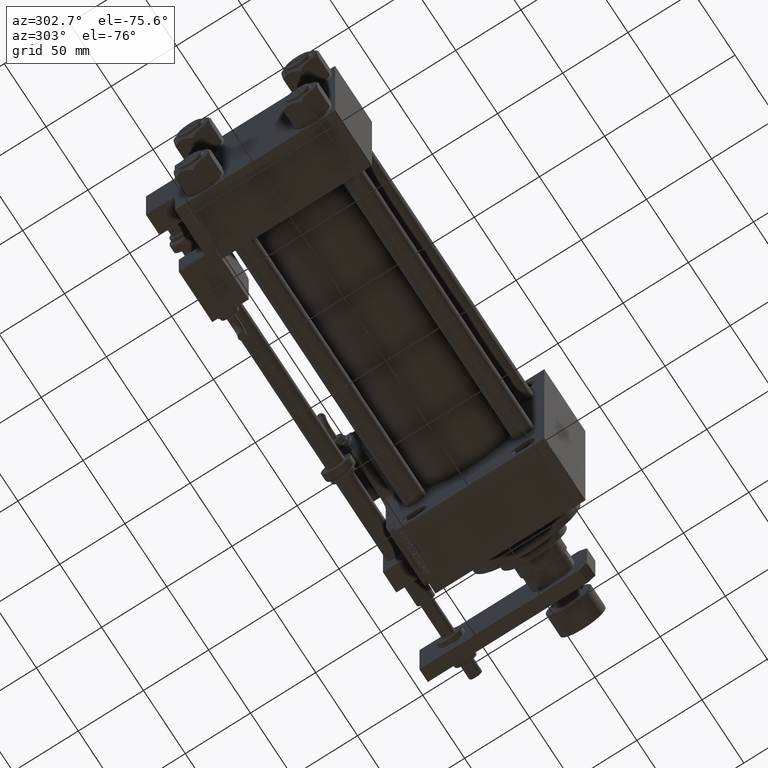
[diagram: clean part render]
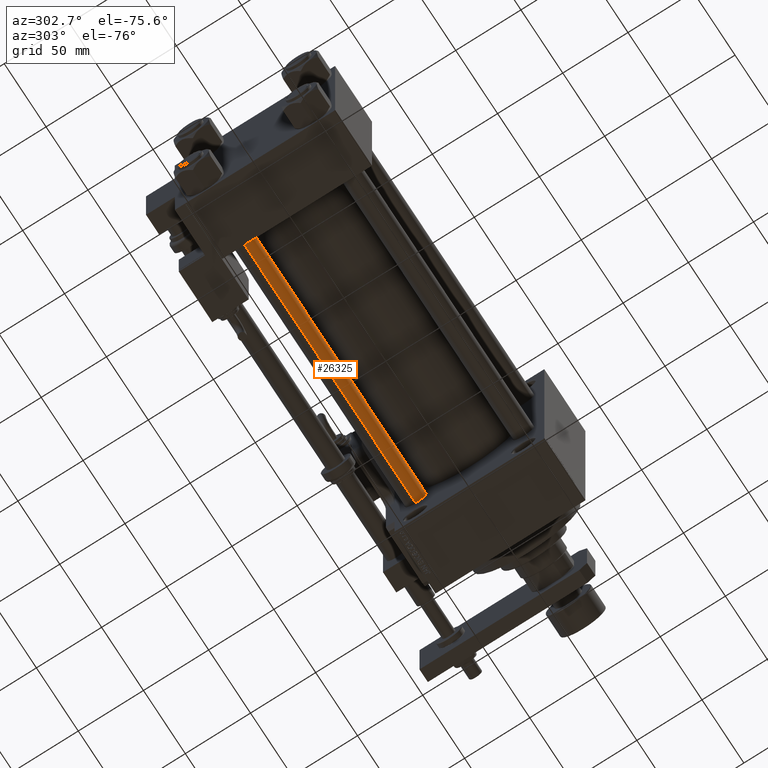
[diagram: same view with one face highlighted and labeled with its STEP entity id]
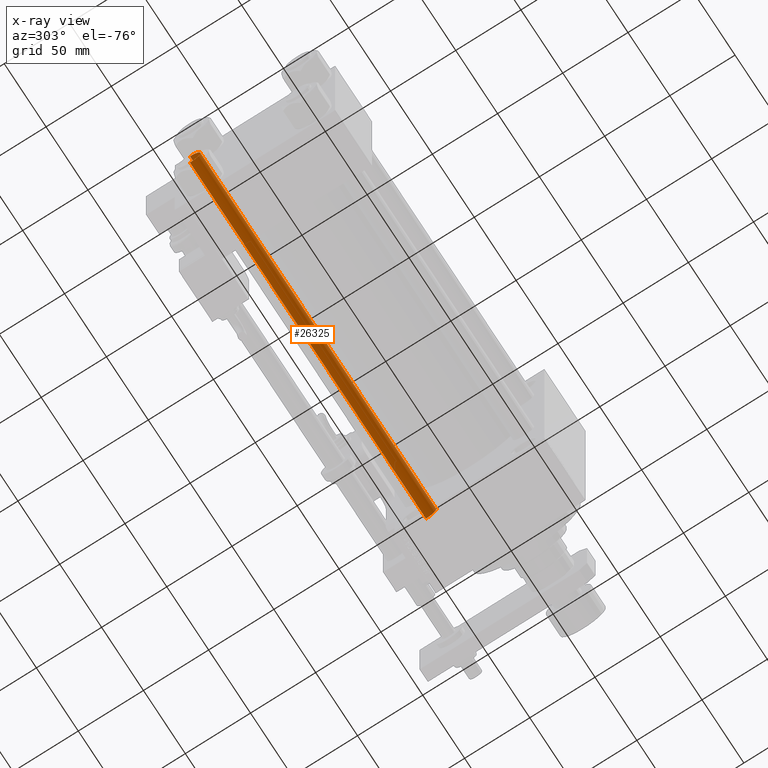
[diagram: x-ray of the same camera — body ghosted, the highlighted face saturated]
A machine part, auxiliary view. The second image highlights one B-rep face of the part: STEP entity #26325.
The next image is the same camera in x-ray: the body ghosted, the highlighted face saturated — about 0% of this face is hidden behind the body in this view.
In plain terms, the highlighted cylindrical surface (edge-blend (fillet) strip) has radius 8 mm, axis along (-1, -0, 0).
Its self-contained STEP definition (entity closure, byte-faithful):
#790 = CARTESIAN_POINT ( 'NONE',  ( 0.000000000000000000, 0.000000000000000000, 0.5000000000000004441 ) ) ;
#995 = ORIENTED_EDGE ( 'NONE', *, *, #44216, .T. ) ;
#6177 = VERTEX_POINT ( 'NONE', #32395 ) ;
#9562 = VERTEX_POINT ( 'NONE', #45786 ) ;
#9654 = CIRCLE ( 'NONE', #37596, 8.000000000000000000 ) ;
#9780 = DIRECTION ( 'NONE',  ( 1.000000000000000000, 0.000000000000000000, 0.000000000000000000 ) ) ;
#10776 = LINE ( 'NONE', #18400, #14583 ) ;
#11461 = EDGE_CURVE ( 'NONE', #9562, #6177, #53180, .T. ) ;
#13654 = EDGE_CURVE ( 'NONE', #35386, #6177, #48851, .T. ) ;
#14583 = VECTOR ( 'NONE', #38812, 1000.000000000000000 ) ;
#15552 = EDGE_CURVE ( 'NONE', #9562, #47435, #9654, .T. ) ;
#15934 = EDGE_LOOP ( 'NONE', ( #52997, #42875, #995, #42313 ) ) ;
#18400 = CARTESIAN_POINT ( 'NONE',  ( -8.000000000000000000, 0.000000000000000000, 283.0000000000000000 ) ) ;
#21184 = CARTESIAN_POINT ( 'NONE',  ( -8.000000000000000000, 0.000000000000000000, 282.5000000000000000 ) ) ;
#23319 = DIRECTION ( 'NONE',  ( -1.000000000000000000, 0.000000000000000000, 0.000000000000000000 ) ) ;
#26325 = ADVANCED_FACE ( 'NONE', ( #35831 ), #39652, .T. ) ;
#27669 = DIRECTION ( 'NONE',  ( -0.000000000000000000, -0.000000000000000000, -1.000000000000000000 ) ) ;
#27894 = VECTOR ( 'NONE', #49364, 1000.000000000000000 ) ;
#29932 = DIRECTION ( 'NONE',  ( -0.000000000000000000, -0.000000000000000000, 1.000000000000000000 ) ) ;
#31443 = AXIS2_PLACEMENT_3D ( 'NONE', #790, #29932, #9780 ) ;
#32395 = CARTESIAN_POINT ( 'NONE',  ( 8.000000000000000000, 9.797174393178825657E-16, 0.5000000000000004441 ) ) ;
#35386 = VERTEX_POINT ( 'NONE', #37536 ) ;
#35831 = FACE_OUTER_BOUND ( 'NONE', #15934, .T. ) ;
#37013 = AXIS2_PLACEMENT_3D ( 'NONE', #40185, #27669, #23319 ) ;
#37450 = DIRECTION ( 'NONE',  ( 1.000000000000000000, 0.000000000000000000, 0.000000000000000000 ) ) ;
#37536 = CARTESIAN_POINT ( 'NONE',  ( -8.000000000000000000, 0.000000000000000000, 0.5000000000000004441 ) ) ;
#37596 = AXIS2_PLACEMENT_3D ( 'NONE', #41277, #45379, #37450 ) ;
#38812 = DIRECTION ( 'NONE',  ( -0.000000000000000000, -0.000000000000000000, -1.000000000000000000 ) ) ;
#39652 = CYLINDRICAL_SURFACE ( 'NONE', #37013, 8.000000000000000000 ) ;
#40185 = CARTESIAN_POINT ( 'NONE',  ( 0.000000000000000000, 0.000000000000000000, 283.0000000000000000 ) ) ;
#41277 = CARTESIAN_POINT ( 'NONE',  ( 0.000000000000000000, 0.000000000000000000, 282.5000000000000000 ) ) ;
#42313 = ORIENTED_EDGE ( 'NONE', *, *, #13654, .T. ) ;
#42875 = ORIENTED_EDGE ( 'NONE', *, *, #15552, .T. ) ;
#44216 = EDGE_CURVE ( 'NONE', #47435, #35386, #10776, .T. ) ;
#45379 = DIRECTION ( 'NONE',  ( 0.000000000000000000, 0.000000000000000000, -1.000000000000000000 ) ) ;
#45786 = CARTESIAN_POINT ( 'NONE',  ( 8.000000000000000000, 9.797174393178825657E-16, 282.5000000000000000 ) ) ;
#46077 = CARTESIAN_POINT ( 'NONE',  ( 8.000000000000000000, 9.797174393178825657E-16, 283.0000000000000000 ) ) ;
#47435 = VERTEX_POINT ( 'NONE', #21184 ) ;
#48851 = CIRCLE ( 'NONE', #31443, 8.000000000000000000 ) ;
#49364 = DIRECTION ( 'NONE',  ( -0.000000000000000000, -0.000000000000000000, -1.000000000000000000 ) ) ;
#52997 = ORIENTED_EDGE ( 'NONE', *, *, #11461, .F. ) ;
#53180 = LINE ( 'NONE', #46077, #27894 ) ;